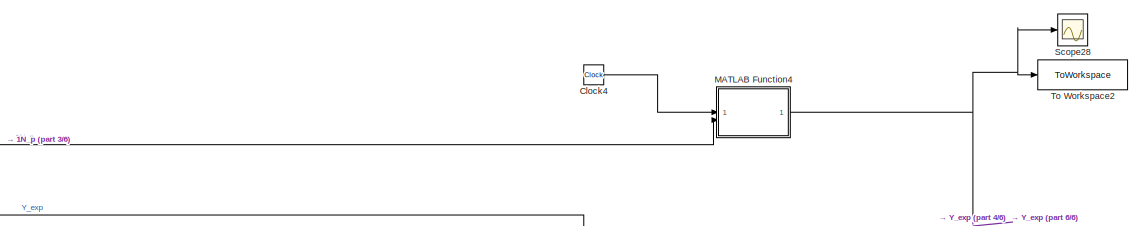
[diagram: root canvas - part 1/6, top center region]
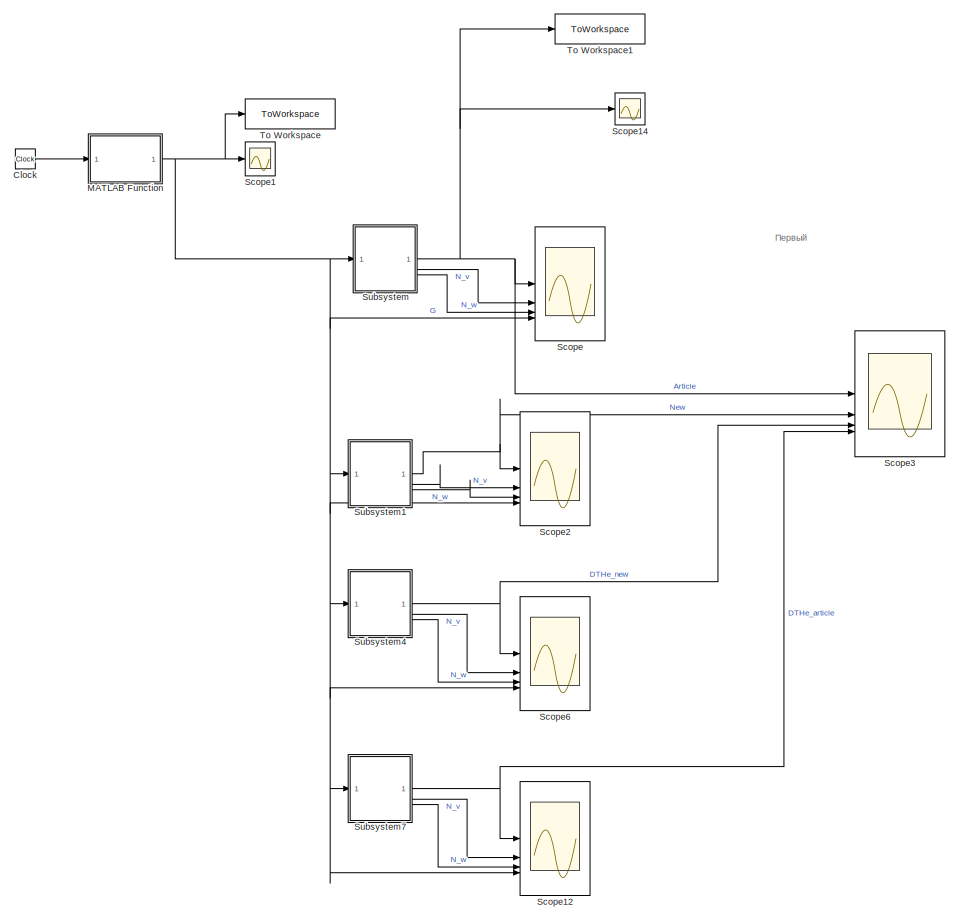
[diagram: root canvas - part 2/6, left side, full height]
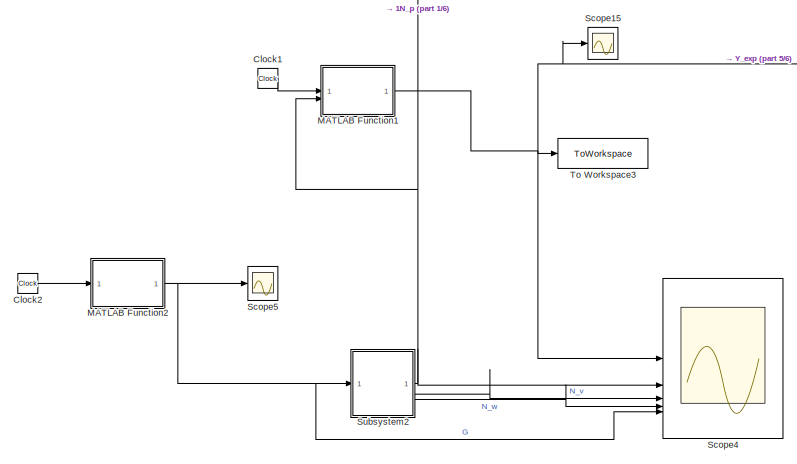
[diagram: root canvas - part 3/6, middle left region]
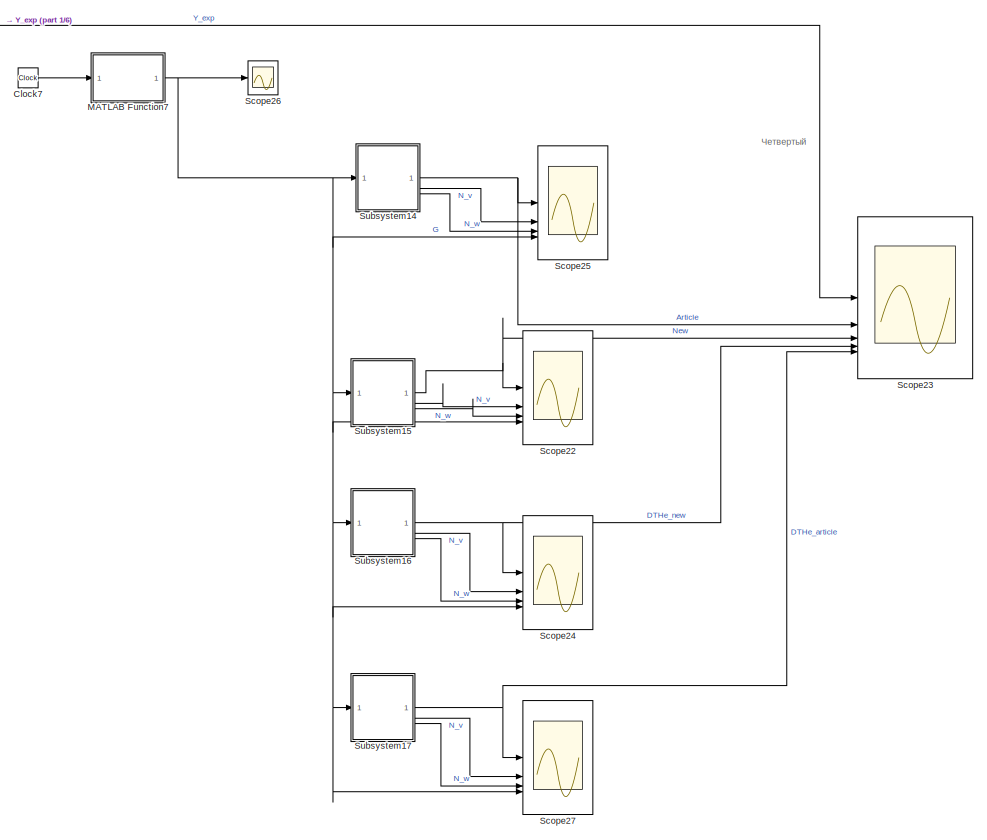
[diagram: root canvas - part 4/6, right side, full height]
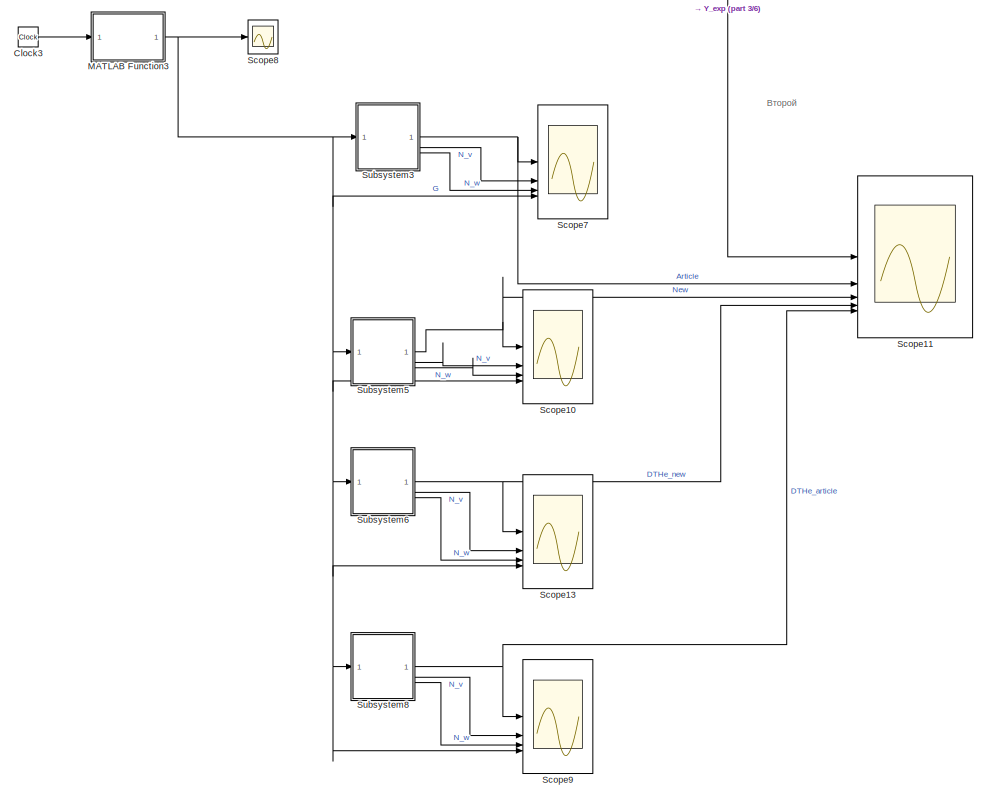
[diagram: root canvas - part 5/6, center side, full height]
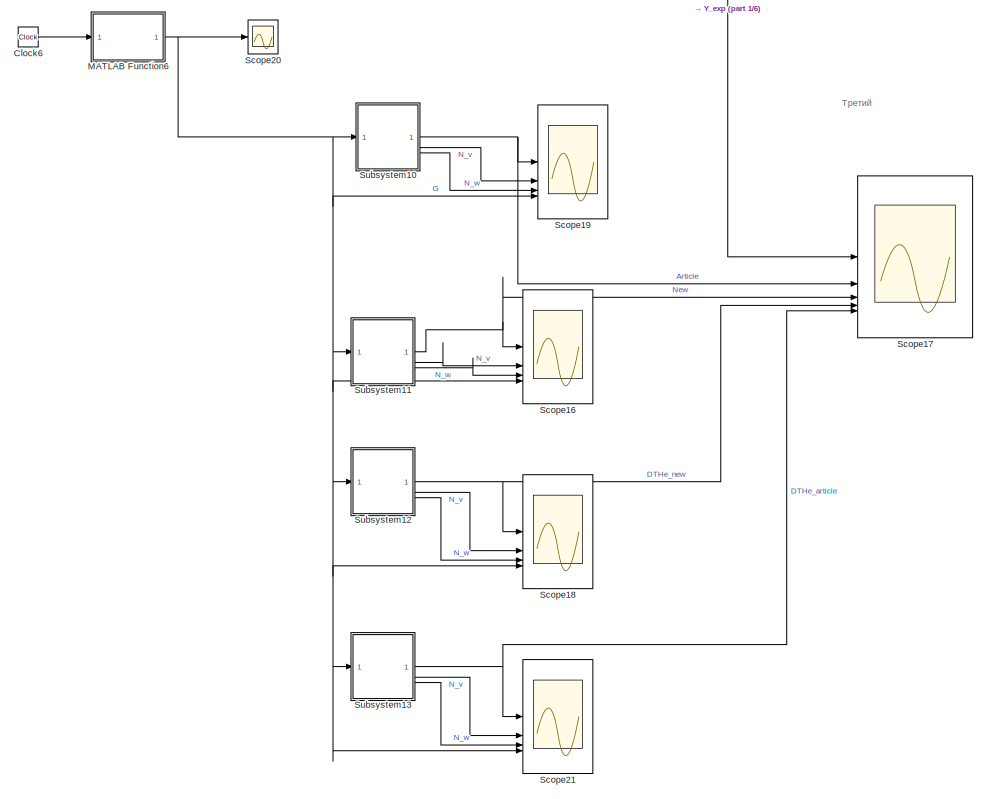
[diagram: root canvas - part 6/6, right side, full height]
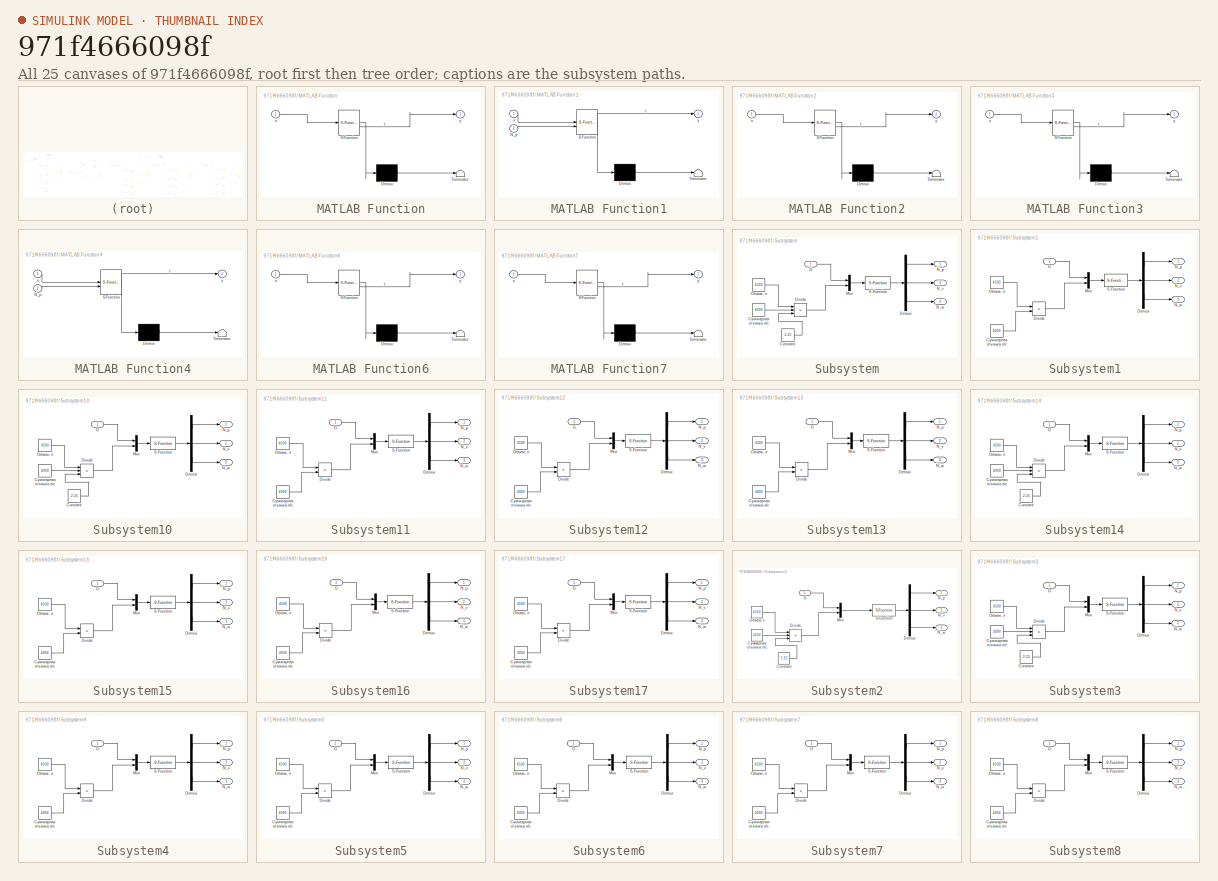
[diagram: thumbnail index - all 25 canvases of the model, root first then tree order]
MODEL slx_971f4666098f
KIND model
CONFIG AbsTol = auto
CONFIG EnableMultiTasking = off
CONFIG FixedStep = auto
CONFIG MaxStep = auto
CONFIG MinStep = auto
CONFIG RelTol = 1e-30
CONFIG SampleTimeConstraint = Unconstrained
CONFIG SolverName = ode45
CONFIG StartTime = 0.0
CONFIG StopTime = 1.8
WORKSPACE source: mxarray member
WORKSPACE N_p0 = 5
WORKSPACE N_v0 = 0
WORKSPACE N_w0 = 0
WORKSPACE t_ion = 0
WORKSPACE t_p = 12
WORKSPACE t_pump = 32
WORKSPACE t_release = 5
WORKSPACE t_retention = 2
BLOCK [Clock] Clock
BLOCK [Clock] Clock1
BLOCK [Clock] Clock2
BLOCK [Clock] Clock3
BLOCK [Clock] Clock4
BLOCK [Clock] Clock6
BLOCK [Clock] Clock7
BLOCK [SubSystem] MATLAB Function
  ErrorFcn = Stateflow.Translate.translate
  LibrarySourceBlock = simulink/User-Defined\nFunctions/MATLAB Function
  PermitHierarchicalResolution = ExplicitOnly
  SFBlockType = MATLAB Function
  TreatAsAtomicUnit = on
BLOCK [Demux] MATLAB Function/ Demux 
  Outputs = 1
BLOCK [S-Function] MATLAB Function/ SFunction 
  EnableBusSupport = on
  FunctionName = sf_sfun
  PortCounts = [1 2]
  SFcnIsStateOwnerBlock = off
  SFunctionDeploymentMode = off
  Tag = Stateflow S-Function 2
BLOCK [Terminator] MATLAB Function/ Terminator 
BLOCK [Inport] MATLAB Function/u
BLOCK [Outport] MATLAB Function/y
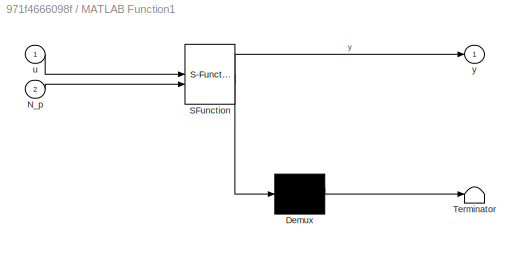
BLOCK [SubSystem] MATLAB Function1
  ErrorFcn = Stateflow.Translate.translate
  LibrarySourceBlock = simulink/User-Defined\nFunctions/MATLAB Function
  PermitHierarchicalResolution = ExplicitOnly
  SFBlockType = MATLAB Function
  TreatAsAtomicUnit = on
BLOCK [Demux] MATLAB Function1/ Demux 
  Outputs = 1
BLOCK [S-Function] MATLAB Function1/ SFunction 
  EnableBusSupport = on
  FunctionName = sf_sfun
  PortCounts = [2 2]
  SFcnIsStateOwnerBlock = off
  SFunctionDeploymentMode = off
  Tag = Stateflow S-Function 1
BLOCK [Terminator] MATLAB Function1/ Terminator 
BLOCK [Inport] MATLAB Function1/N_p
  Port = 2
BLOCK [Inport] MATLAB Function1/u
BLOCK [Outport] MATLAB Function1/y
BLOCK [SubSystem] MATLAB Function2
  ErrorFcn = Stateflow.Translate.translate
  LibrarySourceBlock = simulink/User-Defined\nFunctions/MATLAB Function
  PermitHierarchicalResolution = ExplicitOnly
  SFBlockType = MATLAB Function
  TreatAsAtomicUnit = on
BLOCK [Demux] MATLAB Function2/ Demux 
  Outputs = 1
BLOCK [S-Function] MATLAB Function2/ SFunction 
  EnableBusSupport = on
  FunctionName = sf_sfun
  PortCounts = [1 2]
  SFcnIsStateOwnerBlock = off
  SFunctionDeploymentMode = off
  Tag = Stateflow S-Function 3
BLOCK [Terminator] MATLAB Function2/ Terminator 
BLOCK [Inport] MATLAB Function2/u
BLOCK [Outport] MATLAB Function2/y
BLOCK [SubSystem] MATLAB Function3
  ErrorFcn = Stateflow.Translate.translate
  LibrarySourceBlock = simulink/User-Defined\nFunctions/MATLAB Function
  PermitHierarchicalResolution = ExplicitOnly
  SFBlockType = MATLAB Function
  TreatAsAtomicUnit = on
BLOCK [Demux] MATLAB Function3/ Demux 
  Outputs = 1
BLOCK [S-Function] MATLAB Function3/ SFunction 
  EnableBusSupport = on
  FunctionName = sf_sfun
  PortCounts = [1 2]
  SFcnIsStateOwnerBlock = off
  SFunctionDeploymentMode = off
  Tag = Stateflow S-Function 4
BLOCK [Terminator] MATLAB Function3/ Terminator 
BLOCK [Inport] MATLAB Function3/u
BLOCK [Outport] MATLAB Function3/y
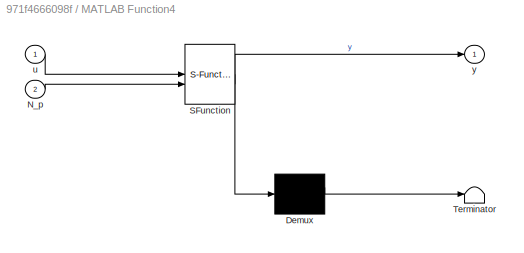
BLOCK [SubSystem] MATLAB Function4
  ErrorFcn = Stateflow.Translate.translate
  LibrarySourceBlock = simulink/User-Defined\nFunctions/MATLAB Function
  PermitHierarchicalResolution = ExplicitOnly
  SFBlockType = MATLAB Function
  TreatAsAtomicUnit = on
BLOCK [Demux] MATLAB Function4/ Demux 
  Outputs = 1
BLOCK [S-Function] MATLAB Function4/ SFunction 
  EnableBusSupport = on
  FunctionName = sf_sfun
  PortCounts = [2 2]
  SFcnIsStateOwnerBlock = off
  SFunctionDeploymentMode = off
  Tag = Stateflow S-Function 5
BLOCK [Terminator] MATLAB Function4/ Terminator 
BLOCK [Inport] MATLAB Function4/N_p
  Port = 2
BLOCK [Inport] MATLAB Function4/u
BLOCK [Outport] MATLAB Function4/y
BLOCK [SubSystem] MATLAB Function6
  ErrorFcn = Stateflow.Translate.translate
  LibrarySourceBlock = simulink/User-Defined\nFunctions/MATLAB Function
  PermitHierarchicalResolution = ExplicitOnly
  SFBlockType = MATLAB Function
  TreatAsAtomicUnit = on
BLOCK [Demux] MATLAB Function6/ Demux 
  Outputs = 1
BLOCK [S-Function] MATLAB Function6/ SFunction 
  EnableBusSupport = on
  FunctionName = sf_sfun
  PortCounts = [1 2]
  SFcnIsStateOwnerBlock = off
  SFunctionDeploymentMode = off
  Tag = Stateflow S-Function 7
BLOCK [Terminator] MATLAB Function6/ Terminator 
BLOCK [Inport] MATLAB Function6/u
BLOCK [Outport] MATLAB Function6/y
BLOCK [SubSystem] MATLAB Function7
  ErrorFcn = Stateflow.Translate.translate
  LibrarySourceBlock = simulink/User-Defined\nFunctions/MATLAB Function
  PermitHierarchicalResolution = ExplicitOnly
  SFBlockType = MATLAB Function
  TreatAsAtomicUnit = on
BLOCK [Demux] MATLAB Function7/ Demux 
  Outputs = 1
BLOCK [S-Function] MATLAB Function7/ SFunction 
  EnableBusSupport = on
  FunctionName = sf_sfun
  PortCounts = [1 2]
  SFcnIsStateOwnerBlock = off
  SFunctionDeploymentMode = off
  Tag = Stateflow S-Function 8
BLOCK [Terminator] MATLAB Function7/ Terminator 
BLOCK [Inport] MATLAB Function7/u
BLOCK [Outport] MATLAB Function7/y
BLOCK [Scope] Scope
  Floating = off
  NumInputPorts = 4
  ScopeSpecificationString = Simulink.scopes.TimeScopeBlockCfg('CurrentConfiguration', extmgr.ConfigurationSet(extmgr.Configuration('Core','General UI',true),extmgr.Configuration('Core','Source UI',true),extmgr.Configuration('Sources','WiredSimulink',true),extmgr.Configuration('Visuals','Time Domain',true,'SerializedDisplays',{struct('MinYLimReal','-9709121777321375744.00000','MaxYLimReal','87382095995892400128.00000','YLabel...<+2950ch>
BLOCK [Scope] Scope1
  Floating = off
  NumInputPorts = 1
  ScopeSpecificationString = Simulink.scopes.TimeScopeBlockCfg('CurrentConfiguration', extmgr.ConfigurationSet(extmgr.Configuration('Core','General UI',true),extmgr.Configuration('Core','Source UI',true),extmgr.Configuration('Sources','WiredSimulink',true,'DataLoggingVariableName','ScopeData1'),extmgr.Configuration('Visuals','Time Domain',true,'SerializedDisplays',{struct('MinYLimReal','-175781227823903145984.00000','MaxYLimR...<+1578ch>
BLOCK [Scope] Scope10
  Floating = off
  NumInputPorts = 4
  ScopeSpecificationString = Simulink.scopes.TimeScopeBlockCfg('CurrentConfiguration', extmgr.ConfigurationSet(extmgr.Configuration('Core','General UI',true),extmgr.Configuration('Core','Source UI',true),extmgr.Configuration('Sources','WiredSimulink',true,'DataLoggingVariableName','ScopeData1'),extmgr.Configuration('Visuals','Time Domain',true,'SerializedDisplays',{struct('MinYLimReal','-9504386308128610304.00000','MaxYLimRea...<+2986ch>  <repeated x3 — deduplicated; at blocks: Scope10, Scope2, Scope22>
BLOCK [Scope] Scope11
  Floating = off
  NumInputPorts = 5
  ScopeSpecificationString = Simulink.scopes.TimeScopeBlockCfg('CurrentConfiguration', extmgr.ConfigurationSet(extmgr.Configuration('Core','General UI',true,'FigureColor',[1 1 1]),extmgr.Configuration('Core','Source UI',true),extmgr.Configuration('Sources','WiredSimulink',true,'DataLoggingVariableName','ScopeData2'),extmgr.Configuration('Visuals','Time Domain',true,'SerializedDisplays',{struct('MinYLimReal','-9429916388543342...<+1748ch>
BLOCK [Scope] Scope12
  Floating = off
  NumInputPorts = 4
  ScopeSpecificationString = Simulink.scopes.TimeScopeBlockCfg('CurrentConfiguration', extmgr.ConfigurationSet(extmgr.Configuration('Core','General UI',true),extmgr.Configuration('Core','Source UI',true),extmgr.Configuration('Sources','WiredSimulink',true,'DataLoggingVariableName','ScopeData9'),extmgr.Configuration('Visuals','Time Domain',true,'SerializedDisplays',{struct('MinYLimReal','-9504386308128610304.00000','MaxYLimRea...<+2986ch>
BLOCK [Scope] Scope13
  Floating = off
  NumInputPorts = 4
  ScopeSpecificationString = Simulink.scopes.TimeScopeBlockCfg('CurrentConfiguration', extmgr.ConfigurationSet(extmgr.Configuration('Core','General UI',true),extmgr.Configuration('Core','Source UI',true),extmgr.Configuration('Sources','WiredSimulink',true,'DataLoggingVariableName','ScopeData3'),extmgr.Configuration('Visuals','Time Domain',true,'SerializedDisplays',{struct('MinYLimReal','-9504386308128610304.00000','MaxYLimRea...<+2986ch>  <repeated x4 — deduplicated; at blocks: Scope13, Scope16, Scope24, Scope6>
BLOCK [Scope] Scope14
  Floating = off
  NumInputPorts = 1
  ScopeSpecificationString = Simulink.scopes.TimeScopeBlockCfg('CurrentConfiguration', extmgr.ConfigurationSet(extmgr.Configuration('Core','General UI',true,'FigureColor',[1 1 1]),extmgr.Configuration('Core','Source UI',true),extmgr.Configuration('Sources','WiredSimulink',true,'DataLoggingVariableName','ScopeData1'),extmgr.Configuration('Visuals','Time Domain',true,'SerializedDisplays',{struct('MinYLimReal','-9429916760222924...<+1632ch>
BLOCK [Scope] Scope15
  Floating = off
  NumInputPorts = 1
  ScopeSpecificationString = Simulink.scopes.TimeScopeBlockCfg('CurrentConfiguration', extmgr.ConfigurationSet(extmgr.Configuration('Core','General UI',true,'FigureColor',[1 1 1]),extmgr.Configuration('Core','Source UI',true),extmgr.Configuration('Sources','WiredSimulink',true,'DataLoggingVariableName','ScopeData2'),extmgr.Configuration('Visuals','Time Domain',true,'SerializedDisplays',{struct('MinYLimReal','-9429916760222924...<+1632ch>
BLOCK [Scope] Scope16
  Floating = off
  NumInputPorts = 4
BLOCK [Scope] Scope17
  Floating = off
  NumInputPorts = 5
  ScopeSpecificationString = Simulink.scopes.TimeScopeBlockCfg('CurrentConfiguration', extmgr.ConfigurationSet(extmgr.Configuration('Core','General UI',true,'FigureColor',[1 1 1]),extmgr.Configuration('Core','Source UI',true),extmgr.Configuration('Sources','WiredSimulink',true,'DataLoggingVariableName','ScopeData4'),extmgr.Configuration('Visuals','Time Domain',true,'SerializedDisplays',{struct('MinYLimReal','-9429916388543342...<+1748ch>
BLOCK [Scope] Scope18
  Floating = off
  NumInputPorts = 4
  ScopeSpecificationString = Simulink.scopes.TimeScopeBlockCfg('CurrentConfiguration', extmgr.ConfigurationSet(extmgr.Configuration('Core','General UI',true),extmgr.Configuration('Core','Source UI',true),extmgr.Configuration('Sources','WiredSimulink',true,'DataLoggingVariableName','ScopeData5'),extmgr.Configuration('Visuals','Time Domain',true,'SerializedDisplays',{struct('MinYLimReal','-9504386308128610304.00000','MaxYLimRea...<+2986ch>
BLOCK [Scope] Scope19
  Floating = off
  NumInputPorts = 4
  ScopeSpecificationString = Simulink.scopes.TimeScopeBlockCfg('CurrentConfiguration', extmgr.ConfigurationSet(extmgr.Configuration('Core','General UI',true),extmgr.Configuration('Core','Source UI',true),extmgr.Configuration('Sources','WiredSimulink',true,'DataLoggingVariableName','ScopeData6'),extmgr.Configuration('Visuals','Time Domain',true,'SerializedDisplays',{struct('MinYLimReal','-9709121777321375744.00000','MaxYLimRea...<+2986ch>
BLOCK [Scope] Scope2
  Floating = off
  NumInputPorts = 4
BLOCK [Scope] Scope20
  Floating = off
  NumInputPorts = 1
  ScopeSpecificationString = Simulink.scopes.TimeScopeBlockCfg('CurrentConfiguration', extmgr.ConfigurationSet(extmgr.Configuration('Core','General UI',true),extmgr.Configuration('Core','Source UI',true),extmgr.Configuration('Sources','WiredSimulink',true,'DataLoggingVariableName','ScopeData7'),extmgr.Configuration('Visuals','Time Domain',true,'SerializedDisplays',{struct('MinYLimReal','-175781227823903145984.00000','MaxYLimR...<+1578ch>
BLOCK [Scope] Scope21
  Floating = off
  NumInputPorts = 4
  ScopeSpecificationString = Simulink.scopes.TimeScopeBlockCfg('CurrentConfiguration', extmgr.ConfigurationSet(extmgr.Configuration('Core','General UI',true),extmgr.Configuration('Core','Source UI',true),extmgr.Configuration('Sources','WiredSimulink',true,'DataLoggingVariableName','ScopeData8'),extmgr.Configuration('Visuals','Time Domain',true,'SerializedDisplays',{struct('MinYLimReal','-9504386308128610304.00000','MaxYLimRea...<+2986ch>
BLOCK [Scope] Scope22
  Floating = off
  NumInputPorts = 4
BLOCK [Scope] Scope23
  Floating = off
  NumInputPorts = 5
  ScopeSpecificationString = Simulink.scopes.TimeScopeBlockCfg('CurrentConfiguration', extmgr.ConfigurationSet(extmgr.Configuration('Core','General UI',true,'FigureColor',[1 1 1]),extmgr.Configuration('Core','Source UI',true),extmgr.Configuration('Sources','WiredSimulink',true,'DataLoggingVariableName','ScopeData2'),extmgr.Configuration('Visuals','Time Domain',true,'SerializedDisplays',{struct('MinYLimReal','-9429916388543342...<+1748ch>
BLOCK [Scope] Scope24
  Floating = off
  NumInputPorts = 4
BLOCK [Scope] Scope25
  Floating = off
  NumInputPorts = 4
  ScopeSpecificationString = Simulink.scopes.TimeScopeBlockCfg('CurrentConfiguration', extmgr.ConfigurationSet(extmgr.Configuration('Core','General UI',true),extmgr.Configuration('Core','Source UI',true),extmgr.Configuration('Sources','WiredSimulink',true,'DataLoggingVariableName','ScopeData4'),extmgr.Configuration('Visuals','Time Domain',true,'SerializedDisplays',{struct('MinYLimReal','-9709121777321375744.00000','MaxYLimRea...<+2986ch>
BLOCK [Scope] Scope26
  Floating = off
  NumInputPorts = 1
  ScopeSpecificationString = Simulink.scopes.TimeScopeBlockCfg('CurrentConfiguration', extmgr.ConfigurationSet(extmgr.Configuration('Core','General UI',true),extmgr.Configuration('Core','Source UI',true),extmgr.Configuration('Sources','WiredSimulink',true,'DataLoggingVariableName','ScopeData5'),extmgr.Configuration('Visuals','Time Domain',true,'SerializedDisplays',{struct('MinYLimReal','-175781227823903145984.00000','MaxYLimR...<+1578ch>
BLOCK [Scope] Scope27
  Floating = off
  NumInputPorts = 4
  ScopeSpecificationString = Simulink.scopes.TimeScopeBlockCfg('CurrentConfiguration', extmgr.ConfigurationSet(extmgr.Configuration('Core','General UI',true),extmgr.Configuration('Core','Source UI',true),extmgr.Configuration('Sources','WiredSimulink',true,'DataLoggingVariableName','ScopeData6'),extmgr.Configuration('Visuals','Time Domain',true,'SerializedDisplays',{struct('MinYLimReal','-9504386308128610304.00000','MaxYLimRea...<+2986ch>
BLOCK [Scope] Scope28
  Floating = off
  NumInputPorts = 1
  ScopeSpecificationString = Simulink.scopes.TimeScopeBlockCfg('CurrentConfiguration', extmgr.ConfigurationSet(extmgr.Configuration('Core','General UI',true,'FigureColor',[1 1 1]),extmgr.Configuration('Core','Source UI',true),extmgr.Configuration('Sources','WiredSimulink',true,'DataLoggingVariableName','ScopeData3'),extmgr.Configuration('Visuals','Time Domain',true,'SerializedDisplays',{struct('MinYLimReal','-9429916760222924...<+1632ch>
BLOCK [Scope] Scope3
  Floating = off
  NumInputPorts = 4
  ScopeSpecificationString = Simulink.scopes.TimeScopeBlockCfg('CurrentConfiguration', extmgr.ConfigurationSet(extmgr.Configuration('Core','General UI',true,'FigureColor',[1 1 1]),extmgr.Configuration('Core','Source UI',true),extmgr.Configuration('Sources','WiredSimulink',true,'DataLoggingVariableName','ScopeData2'),extmgr.Configuration('Visuals','Time Domain',true,'SerializedDisplays',{struct('MinYLimReal','-9429916388543342...<+1653ch>
BLOCK [Scope] Scope4
  Floating = off
  NumInputPorts = 5
  ScopeSpecificationString = Simulink.scopes.TimeScopeBlockCfg('CurrentConfiguration', extmgr.ConfigurationSet(extmgr.Configuration('Core','General UI',true),extmgr.Configuration('Core','Source UI',true),extmgr.Configuration('Sources','WiredSimulink',true,'DataLoggingVariableName','ScopeData1'),extmgr.Configuration('Visuals','Time Domain',true,'SerializedDisplays',{struct('MinYLimReal','-9709121777321375744.00000','MaxYLimRea...<+2994ch>
BLOCK [Scope] Scope5
  Floating = off
  NumInputPorts = 1
  ScopeSpecificationString = Simulink.scopes.TimeScopeBlockCfg('CurrentConfiguration', extmgr.ConfigurationSet(extmgr.Configuration('Core','General UI',true),extmgr.Configuration('Core','Source UI',true),extmgr.Configuration('Sources','WiredSimulink',true,'DataLoggingVariableName','ScopeData2'),extmgr.Configuration('Visuals','Time Domain',true,'SerializedDisplays',{struct('MinYLimReal','-175781227823903145984.00000','MaxYLimR...<+1578ch>
BLOCK [Scope] Scope6
  Floating = off
  NumInputPorts = 4
BLOCK [Scope] Scope7
  Floating = off
  NumInputPorts = 4
  ScopeSpecificationString = Simulink.scopes.TimeScopeBlockCfg('CurrentConfiguration', extmgr.ConfigurationSet(extmgr.Configuration('Core','General UI',true),extmgr.Configuration('Core','Source UI',true),extmgr.Configuration('Sources','WiredSimulink',true,'DataLoggingVariableName','ScopeData4'),extmgr.Configuration('Visuals','Time Domain',true,'SerializedDisplays',{struct('MinYLimReal','-9709121777321375744.00000','MaxYLimRea...<+2986ch>
BLOCK [Scope] Scope8
  Floating = off
  NumInputPorts = 1
  ScopeSpecificationString = Simulink.scopes.TimeScopeBlockCfg('CurrentConfiguration', extmgr.ConfigurationSet(extmgr.Configuration('Core','General UI',true),extmgr.Configuration('Core','Source UI',true),extmgr.Configuration('Sources','WiredSimulink',true,'DataLoggingVariableName','ScopeData5'),extmgr.Configuration('Visuals','Time Domain',true,'SerializedDisplays',{struct('MinYLimReal','-175781227823903145984.00000','MaxYLimR...<+1578ch>
BLOCK [Scope] Scope9
  Floating = off
  NumInputPorts = 4
  ScopeSpecificationString = Simulink.scopes.TimeScopeBlockCfg('CurrentConfiguration', extmgr.ConfigurationSet(extmgr.Configuration('Core','General UI',true),extmgr.Configuration('Core','Source UI',true),extmgr.Configuration('Sources','WiredSimulink',true,'DataLoggingVariableName','ScopeData6'),extmgr.Configuration('Visuals','Time Domain',true,'SerializedDisplays',{struct('MinYLimReal','-9504386308128610304.00000','MaxYLimRea...<+2986ch>
BLOCK [SubSystem] Subsystem
BLOCK [Constant] Subsystem/Constant
  Value = 2.25
BLOCK [Demux] Subsystem/Demux
  Outputs = 3
BLOCK [Product] Subsystem/Divide
  Inputs = *//
BLOCK [Inport] Subsystem/G
BLOCK [Mux] Subsystem/Mux
  DisplayOption = bar
  Inputs = 2
BLOCK [Outport] Subsystem/N_p
BLOCK [Outport] Subsystem/N_v
  Port = 2
BLOCK [Outport] Subsystem/N_w
  Port = 3
BLOCK [S-Function] Subsystem/S-Function
  EnableBusSupport = off
  FunctionName = Sfunction_model_from_article
  Parameters = 0.018, 0.01, 0.283, 0.041, 0, 0, 2.5e+18
  SFcnIsStateOwnerBlock = off
  SFunctionDeploymentMode = off
BLOCK [Constant] Subsystem/Объем, л
  Value = 4500
BLOCK [Constant] Subsystem/Суммарная откачка л//с
  Value = 4000
BLOCK [SubSystem] Subsystem1
BLOCK [Demux] Subsystem1/Demux
  Outputs = 3
BLOCK [Product] Subsystem1/Divide
  Inputs = */
BLOCK [Inport] Subsystem1/G
BLOCK [Mux] Subsystem1/Mux
  DisplayOption = bar
  Inputs = 2
BLOCK [Outport] Subsystem1/N_p
BLOCK [Outport] Subsystem1/N_v
  Port = 2
BLOCK [Outport] Subsystem1/N_w
  Port = 3
BLOCK [S-Function] Subsystem1/S-Function
  EnableBusSupport = off
  FunctionName = Sfunction_model_new
  Parameters = 0.0076, 0.0646, 0.2572, 0.0481, 0, 5.1e+18, 2.1e+18
  SFcnIsStateOwnerBlock = off
  SFunctionDeploymentMode = off
BLOCK [Constant] Subsystem1/Объем, л
  Value = 4500
BLOCK [Constant] Subsystem1/Суммарная откачка л//с
  Value = 4000
BLOCK [SubSystem] Subsystem10
BLOCK [Constant] Subsystem10/Constant
  Value = 2.25
BLOCK [Demux] Subsystem10/Demux
  Outputs = 3
BLOCK [Product] Subsystem10/Divide
  Inputs = *//
BLOCK [Inport] Subsystem10/G
BLOCK [Mux] Subsystem10/Mux
  DisplayOption = bar
  Inputs = 2
BLOCK [Outport] Subsystem10/N_p
BLOCK [Outport] Subsystem10/N_v
  Port = 2
BLOCK [Outport] Subsystem10/N_w
  Port = 3
BLOCK [S-Function] Subsystem10/S-Function
  EnableBusSupport = off
  FunctionName = Sfunction_model_from_article
  Parameters = 1.5034, 0.0316, 1.9389, 0.1626, 0, 1.455e+20, 0
  SFcnIsStateOwnerBlock = off
  SFunctionDeploymentMode = off
BLOCK [Constant] Subsystem10/Объем, л
  Value = 4500
BLOCK [Constant] Subsystem10/Суммарная откачка л//с
  Value = 4000
BLOCK [SubSystem] Subsystem11
BLOCK [Demux] Subsystem11/Demux
  Outputs = 3
BLOCK [Product] Subsystem11/Divide
  Inputs = */
BLOCK [Inport] Subsystem11/G
BLOCK [Mux] Subsystem11/Mux
  DisplayOption = bar
  Inputs = 2
BLOCK [Outport] Subsystem11/N_p
BLOCK [Outport] Subsystem11/N_v
  Port = 2
BLOCK [Outport] Subsystem11/N_w
  Port = 3
BLOCK [S-Function] Subsystem11/S-Function
  EnableBusSupport = off
  FunctionName = Sfunction_model_new
  Parameters = 0.0853, 0.0646, 1.709, 0.2245, 0, 1.804e+20, 0
  SFcnIsStateOwnerBlock = off
  SFunctionDeploymentMode = off
BLOCK [Constant] Subsystem11/Объем, л
  Value = 4500
BLOCK [Constant] Subsystem11/Суммарная откачка л//с
  Value = 4000
BLOCK [SubSystem] Subsystem12
BLOCK [Demux] Subsystem12/Demux
  Outputs = 3
BLOCK [Product] Subsystem12/Divide
  Inputs = */
BLOCK [Inport] Subsystem12/G
BLOCK [Mux] Subsystem12/Mux
  DisplayOption = bar
  Inputs = 2
BLOCK [Outport] Subsystem12/N_p
BLOCK [Outport] Subsystem12/N_v
  Port = 2
BLOCK [Outport] Subsystem12/N_w
  Port = 3
BLOCK [S-Function] Subsystem12/S-Function
  EnableBusSupport = off
  FunctionName = Sfunction_model_DTHe_new
  Parameters = 0.0068, 5, 0.0884, 0.0251, 0.0289, 0.022, 0.1912, 0.0453, 0.0283, 0, 1, 3.125e+20, 0, 0, 0
  SFcnIsStateOwnerBlock = off
  SFunctionDeploymentMode = off
BLOCK [Constant] Subsystem12/Объем, л
  Value = 4500
BLOCK [Constant] Subsystem12/Суммарная откачка л//с
  Value = 4000
BLOCK [SubSystem] Subsystem13
BLOCK [Demux] Subsystem13/Demux
  Outputs = 3
BLOCK [Product] Subsystem13/Divide
  Inputs = */
BLOCK [Inport] Subsystem13/G
BLOCK [Mux] Subsystem13/Mux
  DisplayOption = bar
  Inputs = 2
BLOCK [Outport] Subsystem13/N_p
BLOCK [Outport] Subsystem13/N_v
  Port = 2
BLOCK [Outport] Subsystem13/N_w
  Port = 3
BLOCK [S-Function] Subsystem13/S-Function
  EnableBusSupport = off
  FunctionName = Sfunction_model_DTHe_article
  Parameters = 0.0035, 5, 0.1129, 0.0095, 0.0069, 0.0166, 0.238, 0.0075, 0.0538, 0, 1, 3.125e+20, 0, 0, 0
  SFcnIsStateOwnerBlock = off
  SFunctionDeploymentMode = off
BLOCK [Constant] Subsystem13/Объем, л
  Value = 4500
BLOCK [Constant] Subsystem13/Суммарная откачка л//с
  Value = 4000
BLOCK [SubSystem] Subsystem14
BLOCK [Constant] Subsystem14/Constant
  Value = 2.25
BLOCK [Demux] Subsystem14/Demux
  Outputs = 3
BLOCK [Product] Subsystem14/Divide
  Inputs = *//
BLOCK [Inport] Subsystem14/G
BLOCK [Mux] Subsystem14/Mux
  DisplayOption = bar
  Inputs = 2
BLOCK [Outport] Subsystem14/N_p
BLOCK [Outport] Subsystem14/N_v
  Port = 2
BLOCK [Outport] Subsystem14/N_w
  Port = 3
BLOCK [S-Function] Subsystem14/S-Function
  EnableBusSupport = off
  FunctionName = Sfunction_model_from_article
  Parameters = 1.5034, 0.0316, 1.9389, 0.1626, 0, 1.455e+20, 0
  SFcnIsStateOwnerBlock = off
  SFunctionDeploymentMode = off
BLOCK [Constant] Subsystem14/Объем, л
  Value = 4500
BLOCK [Constant] Subsystem14/Суммарная откачка л//с
  Value = 4000
BLOCK [SubSystem] Subsystem15
BLOCK [Demux] Subsystem15/Demux
  Outputs = 3
BLOCK [Product] Subsystem15/Divide
  Inputs = */
BLOCK [Inport] Subsystem15/G
BLOCK [Mux] Subsystem15/Mux
  DisplayOption = bar
  Inputs = 2
BLOCK [Outport] Subsystem15/N_p
BLOCK [Outport] Subsystem15/N_v
  Port = 2
BLOCK [Outport] Subsystem15/N_w
  Port = 3
BLOCK [S-Function] Subsystem15/S-Function
  EnableBusSupport = off
  FunctionName = Sfunction_model_new
  Parameters = 0.0853, 0.0646, 1.709, 0.2245, 0, 1.804e+20, 0
  SFcnIsStateOwnerBlock = off
  SFunctionDeploymentMode = off
BLOCK [Constant] Subsystem15/Объем, л
  Value = 4500
BLOCK [Constant] Subsystem15/Суммарная откачка л//с
  Value = 4000
BLOCK [SubSystem] Subsystem16
BLOCK [Demux] Subsystem16/Demux
  Outputs = 3
BLOCK [Product] Subsystem16/Divide
  Inputs = */
BLOCK [Inport] Subsystem16/G
BLOCK [Mux] Subsystem16/Mux
  DisplayOption = bar
  Inputs = 2
BLOCK [Outport] Subsystem16/N_p
BLOCK [Outport] Subsystem16/N_v
  Port = 2
BLOCK [Outport] Subsystem16/N_w
  Port = 3
BLOCK [S-Function] Subsystem16/S-Function
  EnableBusSupport = off
  FunctionName = Sfunction_model_DTHe_new
  Parameters = 0.0073, 5.101e+9, 0.0934, 0.0257, 0.0287 0.022, 0.1926, 0.045, 0.0283, 0, 1, 3.125e+20, 0, 0, 0
  SFcnIsStateOwnerBlock = off
  SFunctionDeploymentMode = off
BLOCK [Constant] Subsystem16/Объем, л
  Value = 4500
BLOCK [Constant] Subsystem16/Суммарная откачка л//с
  Value = 4000
BLOCK [SubSystem] Subsystem17
BLOCK [Demux] Subsystem17/Demux
  Outputs = 3
BLOCK [Product] Subsystem17/Divide
  Inputs = */
BLOCK [Inport] Subsystem17/G
BLOCK [Mux] Subsystem17/Mux
  DisplayOption = bar
  Inputs = 2
BLOCK [Outport] Subsystem17/N_p
BLOCK [Outport] Subsystem17/N_v
  Port = 2
BLOCK [Outport] Subsystem17/N_w
  Port = 3
BLOCK [S-Function] Subsystem17/S-Function
  EnableBusSupport = off
  FunctionName = Sfunction_model_DTHe_article
  Parameters = 0.0037, 5.366, 0.1144, 0.01, 0.0067, 0.0165, 0.24, 0.0067, 0.0539, 0, 1, 3.125e+20, 0, 0, 0
  SFcnIsStateOwnerBlock = off
  SFunctionDeploymentMode = off
BLOCK [Constant] Subsystem17/Объем, л
  Value = 4500
BLOCK [Constant] Subsystem17/Суммарная откачка л//с
  Value = 4000
BLOCK [SubSystem] Subsystem2
BLOCK [Constant] Subsystem2/Constant
  Value = 2.25
BLOCK [Demux] Subsystem2/Demux
  Outputs = 3
BLOCK [Product] Subsystem2/Divide
  Inputs = *//
BLOCK [Inport] Subsystem2/G
BLOCK [Mux] Subsystem2/Mux
  DisplayOption = bar
  Inputs = 2
BLOCK [Outport] Subsystem2/N_p
BLOCK [Outport] Subsystem2/N_v
  Port = 2
BLOCK [Outport] Subsystem2/N_w
  Port = 3
BLOCK [S-Function] Subsystem2/S-Function
  EnableBusSupport = off
  FunctionName = Sfunction_model_from_article
  Parameters = 0.018, 0.01, 0.283, 0.041, 0, 0, 2.5e+18
  SFcnIsStateOwnerBlock = off
  SFunctionDeploymentMode = off
BLOCK [Constant] Subsystem2/Объем, л
  Value = 4500
BLOCK [Constant] Subsystem2/Суммарная откачка л//с
  Value = 4000
BLOCK [SubSystem] Subsystem3
BLOCK [Constant] Subsystem3/Constant
  Value = 2.25
BLOCK [Demux] Subsystem3/Demux
  Outputs = 3
BLOCK [Product] Subsystem3/Divide
  Inputs = *//
BLOCK [Inport] Subsystem3/G
BLOCK [Mux] Subsystem3/Mux
  DisplayOption = bar
  Inputs = 2
BLOCK [Outport] Subsystem3/N_p
BLOCK [Outport] Subsystem3/N_v
  Port = 2
BLOCK [Outport] Subsystem3/N_w
  Port = 3
BLOCK [S-Function] Subsystem3/S-Function
  EnableBusSupport = off
  FunctionName = Sfunction_model_from_article
  Parameters = 5, 0.0322, 1.8578, 0.1827, 0, 1.601e+20, 0
  SFcnIsStateOwnerBlock = off
  SFunctionDeploymentMode = off
BLOCK [Constant] Subsystem3/Объем, л
  Value = 4500
BLOCK [Constant] Subsystem3/Суммарная откачка л//с
  Value = 4000
BLOCK [SubSystem] Subsystem4
BLOCK [Demux] Subsystem4/Demux
  Outputs = 3
BLOCK [Product] Subsystem4/Divide
  Inputs = */
BLOCK [Inport] Subsystem4/G
BLOCK [Mux] Subsystem4/Mux
  DisplayOption = bar
  Inputs = 2
BLOCK [Outport] Subsystem4/N_p
BLOCK [Outport] Subsystem4/N_v
  Port = 2
BLOCK [Outport] Subsystem4/N_w
  Port = 3
BLOCK [S-Function] Subsystem4/S-Function
  EnableBusSupport = off
  FunctionName = Sfunction_model_DTHe_new
  Parameters = 0.0051, 0.0389, 0.2732, 0.0122, 0.0429, 0.03, 0.1545, 0.0628, 0.0323, 0, 1, 1e+18, 0, 0, 0
  SFcnIsStateOwnerBlock = off
  SFunctionDeploymentMode = off
BLOCK [Constant] Subsystem4/Объем, л
  Value = 4500
BLOCK [Constant] Subsystem4/Суммарная откачка л//с
  Value = 4000
BLOCK [SubSystem] Subsystem5
BLOCK [Demux] Subsystem5/Demux
  Outputs = 3
BLOCK [Product] Subsystem5/Divide
  Inputs = */
BLOCK [Inport] Subsystem5/G
BLOCK [Mux] Subsystem5/Mux
  DisplayOption = bar
  Inputs = 2
BLOCK [Outport] Subsystem5/N_p
BLOCK [Outport] Subsystem5/N_v
  Port = 2
BLOCK [Outport] Subsystem5/N_w
  Port = 3
BLOCK [S-Function] Subsystem5/S-Function
  EnableBusSupport = off
  FunctionName = Sfunction_model_new
  Parameters = 0.0995, 0.0622, 1.4499, 0.2699, 0, 2.163e+20, 0
  SFcnIsStateOwnerBlock = off
  SFunctionDeploymentMode = off
BLOCK [Constant] Subsystem5/Объем, л
  Value = 4500
BLOCK [Constant] Subsystem5/Суммарная откачка л//с
  Value = 4000
BLOCK [SubSystem] Subsystem6
BLOCK [Demux] Subsystem6/Demux
  Outputs = 3
BLOCK [Product] Subsystem6/Divide
  Inputs = */
BLOCK [Inport] Subsystem6/G
BLOCK [Mux] Subsystem6/Mux
  DisplayOption = bar
  Inputs = 2
BLOCK [Outport] Subsystem6/N_p
BLOCK [Outport] Subsystem6/N_v
  Port = 2
BLOCK [Outport] Subsystem6/N_w
  Port = 3
BLOCK [S-Function] Subsystem6/S-Function
  EnableBusSupport = off
  FunctionName = Sfunction_model_DTHe_new
  Parameters = 0.0062, 5, 0.0806, 0.0259, 0.03, 0.0223, 0.1899, 0.0457, 0.0271, 0, 1, 3.087e+20, 0, 0, 0
  SFcnIsStateOwnerBlock = off
  SFunctionDeploymentMode = off
BLOCK [Constant] Subsystem6/Объем, л
  Value = 4500
BLOCK [Constant] Subsystem6/Суммарная откачка л//с
  Value = 4000
BLOCK [SubSystem] Subsystem7
BLOCK [Demux] Subsystem7/Demux
  Outputs = 3
BLOCK [Product] Subsystem7/Divide
  Inputs = */
BLOCK [Inport] Subsystem7/G
BLOCK [Mux] Subsystem7/Mux
  DisplayOption = bar
  Inputs = 2
BLOCK [Outport] Subsystem7/N_p
BLOCK [Outport] Subsystem7/N_v
  Port = 2
BLOCK [Outport] Subsystem7/N_w
  Port = 3
BLOCK [S-Function] Subsystem7/S-Function
  EnableBusSupport = off
  FunctionName = Sfunction_model_DTHe_article
  Parameters = 0.0026, 0.1006, 0.7133, 0.0085, 0.0251, 0.0294, 0.1597, 0.0547, 0.0248, 0, 1, 1, 0, 0, 0
  SFcnIsStateOwnerBlock = off
  SFunctionDeploymentMode = off
BLOCK [Constant] Subsystem7/Объем, л
  Value = 4500
BLOCK [Constant] Subsystem7/Суммарная откачка л//с
  Value = 4000
BLOCK [SubSystem] Subsystem8
BLOCK [Demux] Subsystem8/Demux
  Outputs = 3
BLOCK [Product] Subsystem8/Divide
  Inputs = */
BLOCK [Inport] Subsystem8/G
BLOCK [Mux] Subsystem8/Mux
  DisplayOption = bar
  Inputs = 2
BLOCK [Outport] Subsystem8/N_p
BLOCK [Outport] Subsystem8/N_v
  Port = 2
BLOCK [Outport] Subsystem8/N_w
  Port = 3
BLOCK [S-Function] Subsystem8/S-Function
  EnableBusSupport = off
  FunctionName = Sfunction_model_DTHe_article
  Parameters = 0.0041, 5, 0.104, 0.0122, 0.0078, 0.0171, 0.2331, 0.0072, 0.0532, 0, 1, 3.087e+20, 0, 0, 0
  SFcnIsStateOwnerBlock = off
  SFunctionDeploymentMode = off
BLOCK [Constant] Subsystem8/Объем, л
  Value = 4500
BLOCK [Constant] Subsystem8/Суммарная откачка л//с
  Value = 4000
BLOCK [ToWorkspace] To Workspace
  FixptAsFi = on
  MaxDataPoints = inf
  SampleTime = 0.001
  Save2DSignal = 2-D array (concatenate along first dimension)
  VariableName = G
BLOCK [ToWorkspace] To Workspace1
  FixptAsFi = on
  MaxDataPoints = inf
  SampleTime = 0.001
  Save2DSignal = 2-D array (concatenate along first dimension)
  VariableName = Yexp
BLOCK [ToWorkspace] To Workspace2
  FixptAsFi = on
  MaxDataPoints = inf
  SampleTime = 0.001
  Save2DSignal = 2-D array (concatenate along first dimension)
  VariableName = Yexp3
BLOCK [ToWorkspace] To Workspace3
  FixptAsFi = on
  MaxDataPoints = inf
  SampleTime = 0.001
  Save2DSignal = 2-D array (concatenate along first dimension)
  VariableName = Yexp2
ANNOTATION (root): Второй
ANNOTATION (root): Первый
ANNOTATION (root): Третий
ANNOTATION (root): Четвертый
LINE Clock1:1 -> MATLAB Function1:1
LINE Clock2:1 -> MATLAB Function2:1
LINE Clock3:1 -> MATLAB Function3:1
LINE Clock4:1 -> MATLAB Function4:1
LINE Clock6:1 -> MATLAB Function6:1
LINE Clock7:1 -> MATLAB Function7:1
LINE Clock:1 -> MATLAB Function:1
NET MATLAB Function1:1 -> Scope11:1, Scope15:1, Scope4:1, To Workspace3:1
NET MATLAB Function2:1 -> Scope4:5, Scope5:1, Subsystem2:1
NET MATLAB Function3:1 -> Scope10:4, Scope13:4, Scope7:4, Scope8:1, Scope9:4, Subsystem3:1, Subsystem5:1, Subsystem6:1, Subsystem8:1
NET MATLAB Function4:1 -> Scope17:1, Scope23:1, Scope28:1, To Workspace2:1
NET MATLAB Function6:1 -> Scope16:4, Scope18:4, Scope19:4, Scope20:1, Scope21:4, Subsystem10:1, Subsystem11:1, Subsystem12:1, Subsystem13:1
NET MATLAB Function7:1 -> Scope22:4, Scope24:4, Scope25:4, Scope26:1, Scope27:4, Subsystem14:1, Subsystem15:1, Subsystem16:1, Subsystem17:1
NET MATLAB Function:1 -> Scope12:4, Scope1:1, Scope2:4, Scope6:4, Scope:4, Subsystem1:1, Subsystem4:1, Subsystem7:1, Subsystem:1, To Workspace:1
LINE Subsystem/Constant:1 -> Subsystem/Divide:3
LINE Subsystem/Demux:1 -> Subsystem/N_p:1
LINE Subsystem/Demux:2 -> Subsystem/N_v:1
LINE Subsystem/Demux:3 -> Subsystem/N_w:1
LINE Subsystem/Divide:1 -> Subsystem/Mux:2
LINE Subsystem/G:1 -> Subsystem/Mux:1
LINE Subsystem/Mux:1 -> Subsystem/S-Function:1
LINE Subsystem/S-Function:1 -> Subsystem/Demux:1
LINE Subsystem/Объем, л:1 -> Subsystem/Divide:1
LINE Subsystem/Суммарная откачка л//с:1 -> Subsystem/Divide:2
LINE Subsystem1/Demux:1 -> Subsystem1/N_p:1
LINE Subsystem1/Demux:2 -> Subsystem1/N_v:1
LINE Subsystem1/Demux:3 -> Subsystem1/N_w:1
LINE Subsystem1/Divide:1 -> Subsystem1/Mux:2
LINE Subsystem1/G:1 -> Subsystem1/Mux:1
LINE Subsystem1/Mux:1 -> Subsystem1/S-Function:1
LINE Subsystem1/S-Function:1 -> Subsystem1/Demux:1
LINE Subsystem1/Объем, л:1 -> Subsystem1/Divide:1
LINE Subsystem1/Суммарная откачка л//с:1 -> Subsystem1/Divide:2
LINE Subsystem10/Constant:1 -> Subsystem10/Divide:3
LINE Subsystem10/Demux:1 -> Subsystem10/N_p:1
LINE Subsystem10/Demux:2 -> Subsystem10/N_v:1
LINE Subsystem10/Demux:3 -> Subsystem10/N_w:1
LINE Subsystem10/Divide:1 -> Subsystem10/Mux:2
LINE Subsystem10/G:1 -> Subsystem10/Mux:1
LINE Subsystem10/Mux:1 -> Subsystem10/S-Function:1
LINE Subsystem10/S-Function:1 -> Subsystem10/Demux:1
LINE Subsystem10/Объем, л:1 -> Subsystem10/Divide:1
LINE Subsystem10/Суммарная откачка л//с:1 -> Subsystem10/Divide:2
NET Subsystem10:1 -> Scope17:2, Scope19:1
LINE Subsystem10:2 -> Scope19:2
LINE Subsystem10:3 -> Scope19:3
LINE Subsystem11/Demux:1 -> Subsystem11/N_p:1
LINE Subsystem11/Demux:2 -> Subsystem11/N_v:1
LINE Subsystem11/Demux:3 -> Subsystem11/N_w:1
LINE Subsystem11/Divide:1 -> Subsystem11/Mux:2
LINE Subsystem11/G:1 -> Subsystem11/Mux:1
LINE Subsystem11/Mux:1 -> Subsystem11/S-Function:1
LINE Subsystem11/S-Function:1 -> Subsystem11/Demux:1
LINE Subsystem11/Объем, л:1 -> Subsystem11/Divide:1
LINE Subsystem11/Суммарная откачка л//с:1 -> Subsystem11/Divide:2
NET Subsystem11:1 -> Scope16:1, Scope17:3
LINE Subsystem11:2 -> Scope16:2
LINE Subsystem11:3 -> Scope16:3
LINE Subsystem12/Demux:1 -> Subsystem12/N_p:1
LINE Subsystem12/Demux:2 -> Subsystem12/N_v:1
LINE Subsystem12/Demux:3 -> Subsystem12/N_w:1
LINE Subsystem12/Divide:1 -> Subsystem12/Mux:2
LINE Subsystem12/G:1 -> Subsystem12/Mux:1
LINE Subsystem12/Mux:1 -> Subsystem12/S-Function:1
LINE Subsystem12/S-Function:1 -> Subsystem12/Demux:1
LINE Subsystem12/Объем, л:1 -> Subsystem12/Divide:1
LINE Subsystem12/Суммарная откачка л//с:1 -> Subsystem12/Divide:2
NET Subsystem12:1 -> Scope17:4, Scope18:1
LINE Subsystem12:2 -> Scope18:2
LINE Subsystem12:3 -> Scope18:3
LINE Subsystem13/Demux:1 -> Subsystem13/N_p:1
LINE Subsystem13/Demux:2 -> Subsystem13/N_v:1
LINE Subsystem13/Demux:3 -> Subsystem13/N_w:1
LINE Subsystem13/Divide:1 -> Subsystem13/Mux:2
LINE Subsystem13/G:1 -> Subsystem13/Mux:1
LINE Subsystem13/Mux:1 -> Subsystem13/S-Function:1
LINE Subsystem13/S-Function:1 -> Subsystem13/Demux:1
LINE Subsystem13/Объем, л:1 -> Subsystem13/Divide:1
LINE Subsystem13/Суммарная откачка л//с:1 -> Subsystem13/Divide:2
NET Subsystem13:1 -> Scope17:5, Scope21:1
LINE Subsystem13:2 -> Scope21:2
LINE Subsystem13:3 -> Scope21:3
LINE Subsystem14/Constant:1 -> Subsystem14/Divide:3
LINE Subsystem14/Demux:1 -> Subsystem14/N_p:1
LINE Subsystem14/Demux:2 -> Subsystem14/N_v:1
LINE Subsystem14/Demux:3 -> Subsystem14/N_w:1
LINE Subsystem14/Divide:1 -> Subsystem14/Mux:2
LINE Subsystem14/G:1 -> Subsystem14/Mux:1
LINE Subsystem14/Mux:1 -> Subsystem14/S-Function:1
LINE Subsystem14/S-Function:1 -> Subsystem14/Demux:1
LINE Subsystem14/Объем, л:1 -> Subsystem14/Divide:1
LINE Subsystem14/Суммарная откачка л//с:1 -> Subsystem14/Divide:2
NET Subsystem14:1 -> Scope23:2, Scope25:1
LINE Subsystem14:2 -> Scope25:2
LINE Subsystem14:3 -> Scope25:3
LINE Subsystem15/Demux:1 -> Subsystem15/N_p:1
LINE Subsystem15/Demux:2 -> Subsystem15/N_v:1
LINE Subsystem15/Demux:3 -> Subsystem15/N_w:1
LINE Subsystem15/Divide:1 -> Subsystem15/Mux:2
LINE Subsystem15/G:1 -> Subsystem15/Mux:1
LINE Subsystem15/Mux:1 -> Subsystem15/S-Function:1
LINE Subsystem15/S-Function:1 -> Subsystem15/Demux:1
LINE Subsystem15/Объем, л:1 -> Subsystem15/Divide:1
LINE Subsystem15/Суммарная откачка л//с:1 -> Subsystem15/Divide:2
NET Subsystem15:1 -> Scope22:1, Scope23:3
LINE Subsystem15:2 -> Scope22:2
LINE Subsystem15:3 -> Scope22:3
LINE Subsystem16/Demux:1 -> Subsystem16/N_p:1
LINE Subsystem16/Demux:2 -> Subsystem16/N_v:1
LINE Subsystem16/Demux:3 -> Subsystem16/N_w:1
LINE Subsystem16/Divide:1 -> Subsystem16/Mux:2
LINE Subsystem16/G:1 -> Subsystem16/Mux:1
LINE Subsystem16/Mux:1 -> Subsystem16/S-Function:1
LINE Subsystem16/S-Function:1 -> Subsystem16/Demux:1
LINE Subsystem16/Объем, л:1 -> Subsystem16/Divide:1
LINE Subsystem16/Суммарная откачка л//с:1 -> Subsystem16/Divide:2
NET Subsystem16:1 -> Scope23:4, Scope24:1
LINE Subsystem16:2 -> Scope24:2
LINE Subsystem16:3 -> Scope24:3
LINE Subsystem17/Demux:1 -> Subsystem17/N_p:1
LINE Subsystem17/Demux:2 -> Subsystem17/N_v:1
LINE Subsystem17/Demux:3 -> Subsystem17/N_w:1
LINE Subsystem17/Divide:1 -> Subsystem17/Mux:2
LINE Subsystem17/G:1 -> Subsystem17/Mux:1
LINE Subsystem17/Mux:1 -> Subsystem17/S-Function:1
LINE Subsystem17/S-Function:1 -> Subsystem17/Demux:1
LINE Subsystem17/Объем, л:1 -> Subsystem17/Divide:1
LINE Subsystem17/Суммарная откачка л//с:1 -> Subsystem17/Divide:2
NET Subsystem17:1 -> Scope23:5, Scope27:1
LINE Subsystem17:2 -> Scope27:2
LINE Subsystem17:3 -> Scope27:3
NET Subsystem1:1 -> Scope2:1, Scope3:2
LINE Subsystem1:2 -> Scope2:2
LINE Subsystem1:3 -> Scope2:3
LINE Subsystem2/Constant:1 -> Subsystem2/Divide:3
LINE Subsystem2/Demux:1 -> Subsystem2/N_p:1
LINE Subsystem2/Demux:2 -> Subsystem2/N_v:1
LINE Subsystem2/Demux:3 -> Subsystem2/N_w:1
LINE Subsystem2/Divide:1 -> Subsystem2/Mux:2
LINE Subsystem2/G:1 -> Subsystem2/Mux:1
LINE Subsystem2/Mux:1 -> Subsystem2/S-Function:1
LINE Subsystem2/S-Function:1 -> Subsystem2/Demux:1
LINE Subsystem2/Объем, л:1 -> Subsystem2/Divide:1
LINE Subsystem2/Суммарная откачка л//с:1 -> Subsystem2/Divide:2
NET Subsystem2:1 -> MATLAB Function1:2, MATLAB Function4:2, Scope4:2
LINE Subsystem2:2 -> Scope4:3
LINE Subsystem2:3 -> Scope4:4
LINE Subsystem3/Constant:1 -> Subsystem3/Divide:3
LINE Subsystem3/Demux:1 -> Subsystem3/N_p:1
LINE Subsystem3/Demux:2 -> Subsystem3/N_v:1
LINE Subsystem3/Demux:3 -> Subsystem3/N_w:1
LINE Subsystem3/Divide:1 -> Subsystem3/Mux:2
LINE Subsystem3/G:1 -> Subsystem3/Mux:1
LINE Subsystem3/Mux:1 -> Subsystem3/S-Function:1
LINE Subsystem3/S-Function:1 -> Subsystem3/Demux:1
LINE Subsystem3/Объем, л:1 -> Subsystem3/Divide:1
LINE Subsystem3/Суммарная откачка л//с:1 -> Subsystem3/Divide:2
NET Subsystem3:1 -> Scope11:2, Scope7:1
LINE Subsystem3:2 -> Scope7:2
LINE Subsystem3:3 -> Scope7:3
LINE Subsystem4/Demux:1 -> Subsystem4/N_p:1
LINE Subsystem4/Demux:2 -> Subsystem4/N_v:1
LINE Subsystem4/Demux:3 -> Subsystem4/N_w:1
LINE Subsystem4/Divide:1 -> Subsystem4/Mux:2
LINE Subsystem4/G:1 -> Subsystem4/Mux:1
LINE Subsystem4/Mux:1 -> Subsystem4/S-Function:1
LINE Subsystem4/S-Function:1 -> Subsystem4/Demux:1
LINE Subsystem4/Объем, л:1 -> Subsystem4/Divide:1
LINE Subsystem4/Суммарная откачка л//с:1 -> Subsystem4/Divide:2
NET Subsystem4:1 -> Scope3:3, Scope6:1
LINE Subsystem4:2 -> Scope6:2
LINE Subsystem4:3 -> Scope6:3
LINE Subsystem5/Demux:1 -> Subsystem5/N_p:1
LINE Subsystem5/Demux:2 -> Subsystem5/N_v:1
LINE Subsystem5/Demux:3 -> Subsystem5/N_w:1
LINE Subsystem5/Divide:1 -> Subsystem5/Mux:2
LINE Subsystem5/G:1 -> Subsystem5/Mux:1
LINE Subsystem5/Mux:1 -> Subsystem5/S-Function:1
LINE Subsystem5/S-Function:1 -> Subsystem5/Demux:1
LINE Subsystem5/Объем, л:1 -> Subsystem5/Divide:1
LINE Subsystem5/Суммарная откачка л//с:1 -> Subsystem5/Divide:2
NET Subsystem5:1 -> Scope10:1, Scope11:3
LINE Subsystem5:2 -> Scope10:2
LINE Subsystem5:3 -> Scope10:3
LINE Subsystem6/Demux:1 -> Subsystem6/N_p:1
LINE Subsystem6/Demux:2 -> Subsystem6/N_v:1
LINE Subsystem6/Demux:3 -> Subsystem6/N_w:1
LINE Subsystem6/Divide:1 -> Subsystem6/Mux:2
LINE Subsystem6/G:1 -> Subsystem6/Mux:1
LINE Subsystem6/Mux:1 -> Subsystem6/S-Function:1
LINE Subsystem6/S-Function:1 -> Subsystem6/Demux:1
LINE Subsystem6/Объем, л:1 -> Subsystem6/Divide:1
LINE Subsystem6/Суммарная откачка л//с:1 -> Subsystem6/Divide:2
NET Subsystem6:1 -> Scope11:4, Scope13:1
LINE Subsystem6:2 -> Scope13:2
LINE Subsystem6:3 -> Scope13:3
LINE Subsystem7/Demux:1 -> Subsystem7/N_p:1
LINE Subsystem7/Demux:2 -> Subsystem7/N_v:1
LINE Subsystem7/Demux:3 -> Subsystem7/N_w:1
LINE Subsystem7/Divide:1 -> Subsystem7/Mux:2
LINE Subsystem7/G:1 -> Subsystem7/Mux:1
LINE Subsystem7/Mux:1 -> Subsystem7/S-Function:1
LINE Subsystem7/S-Function:1 -> Subsystem7/Demux:1
LINE Subsystem7/Объем, л:1 -> Subsystem7/Divide:1
LINE Subsystem7/Суммарная откачка л//с:1 -> Subsystem7/Divide:2
NET Subsystem7:1 -> Scope12:1, Scope3:4
LINE Subsystem7:2 -> Scope12:2
LINE Subsystem7:3 -> Scope12:3
LINE Subsystem8/Demux:1 -> Subsystem8/N_p:1
LINE Subsystem8/Demux:2 -> Subsystem8/N_v:1
LINE Subsystem8/Demux:3 -> Subsystem8/N_w:1
LINE Subsystem8/Divide:1 -> Subsystem8/Mux:2
LINE Subsystem8/G:1 -> Subsystem8/Mux:1
LINE Subsystem8/Mux:1 -> Subsystem8/S-Function:1
LINE Subsystem8/S-Function:1 -> Subsystem8/Demux:1
LINE Subsystem8/Объем, л:1 -> Subsystem8/Divide:1
LINE Subsystem8/Суммарная откачка л//с:1 -> Subsystem8/Divide:2
NET Subsystem8:1 -> Scope11:5, Scope9:1
LINE Subsystem8:2 -> Scope9:2
LINE Subsystem8:3 -> Scope9:3
NET Subsystem:1 -> Scope14:1, Scope3:1, Scope:1, To Workspace1:1
LINE Subsystem:2 -> Scope:2
LINE Subsystem:3 -> Scope:3
note: NET lines group one-source signal fan-out (src -> all destinations, sorted); 1:1 wires keep LINE
CHART MATLAB Function states=1 transitions=1
  STATE_LABEL 'eML_blk_kernel()'
  STATE_LABEL 'SCRIPT:\nfunction y = fcn(u)\n\nif (0<=u) && (u<0.2)\n    y = (-4e+22)*u^2 + (5e+21)*u + (1.25e+21);\nelseif (0.2<=u) && (u<0.5)\n    y = 7.62*10^20;\nelseif (0.5<=u && u<0.7) || (0.77<=u && u<0.8) || (0.92<=u && u<1.07) || (1.12<=u && u<1.17) || (1.23<=u && u<1.37) || (1.54<=u && u<1.59) \n    y = 2.162*10^20;\nelseif (0.7<=u && u<0.77) || (0.8<=u && u<0.92) || (1.07<=u && u<1.12) || (1.17<=u && u<1.23) |...<+114ch>'  <repeated x5 — deduplicated; at blocks: MATLAB Function, MATLAB Function2, MATLAB Function3, MATLAB Function6, MATLAB Function7>
CHART MATLAB Function2 states=1 transitions=1
  STATE_LABEL 'eML_blk_kernel()'
CHART MATLAB Function3 states=1 transitions=1
  STATE_LABEL 'eML_blk_kernel()'
CHART MATLAB Function4 states=1 transitions=1
  STATE_LABEL 'eML_blk_kernel()'
  STATE_LABEL 'SCRIPT:\nfunction y  = fcn(u, N_p)\n\nif (0<=u) && (u<0.53)\n    y = 390.98*u^3 - 429.25*u^2 + 117.8*u - 0.3215;\n    y = y*(5*10^18);\n    y = N_p + y;\nelseif (0.53<=u) && (u<1.62)\n    y = N_p;\nelseif u>=1.62\n    y= -28948929495286300000000*u^3 + 145674489317660000000000*u^2 - 244339807909725000000000*u + 136666492567801000000000;\nelse \n    y = 0;\nend\n\nif y<0\n    y = 0;\nend\n\nend'
CHART MATLAB Function6 states=1 transitions=1
  STATE_LABEL 'eML_blk_kernel()'
CHART MATLAB Function7 states=1 transitions=1
  STATE_LABEL 'eML_blk_kernel()'
CHART MATLAB Function1 states=1 transitions=1
  STATE_LABEL 'eML_blk_kernel()'
  STATE_LABEL 'SCRIPT:\nfunction y  = fcn(u, N_p)\n\nif (0<=u) && (u<0.53)\n    y = 390.98*u^3 - 429.25*u^2 + 117.8*u - 0.3215;\n    y = y*(5*10^18);\n    y = N_p + y;\nelseif (0.53<=u) && (u<1.61)\n    y = N_p;\nelseif u>=1.61\n    y= (-4.173822371660780e+22)*u^3 + (2.076070085717630e+23)*u^2 - (3.439743933468400e+23)*u + 1.899107156750840e+23;\nelse \n    y = 0;\nend\n\nif y<0\n    y = 0;\nend\n\nend'
CHART  states=0 transitions=0
CHART  states=0 transitions=0
CHART  states=0 transitions=0
CHART  states=0 transitions=0
CHART  states=0 transitions=0
CHART  states=0 transitions=0
CHART  states=0 transitions=0
